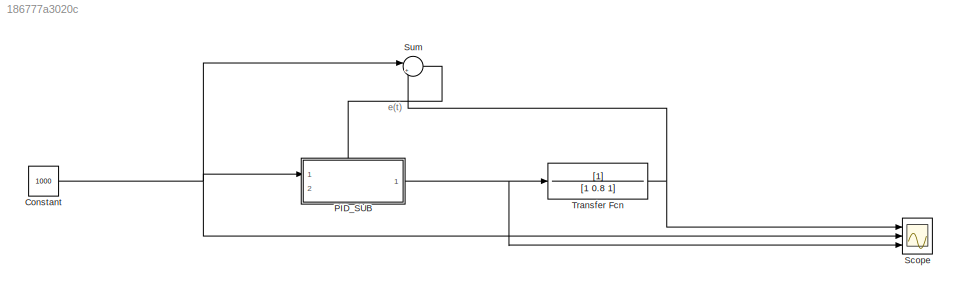
MODEL slx_186777a3020c
KIND model
CONFIG AbsTol = auto
CONFIG EnableMultiTasking = on
CONFIG FixedStep = auto
CONFIG MaxStep = auto
CONFIG MinStep = auto
CONFIG RelTol = 1e-3
CONFIG SampleTimeConstraint = Unconstrained
CONFIG Solver = VariableStepAuto
CONFIG SolverName = VariableStepAuto
CONFIG StartTime = 0.0
CONFIG StopTime = 10.0
WORKSPACE source: mxarray member
WORKSPACE kd = 1.5
WORKSPACE ki = 0.01
WORKSPACE kp = 1
BLOCK [Constant] Constant
  Value = 1000
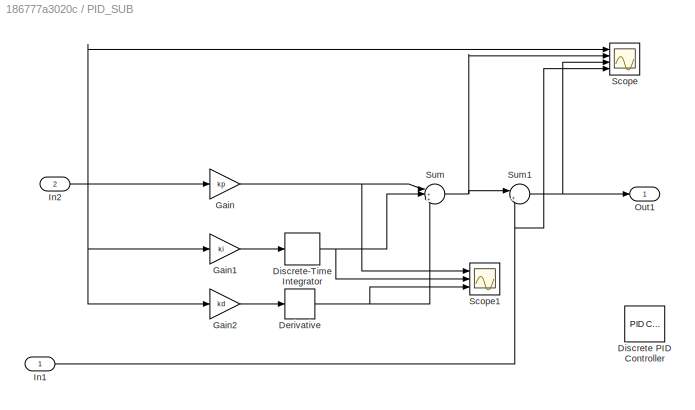
BLOCK [SubSystem] PID_SUB
  PortSchema = {"entries":[{"content":{"sides":[{"content":{"connectorIds":["In1"]},"type":"ConnectorPlacement.EquallySpacedRectSide","uuid":"4c2eb2ca-499d-4d80-b62c-81905e956b01"},{"content":{"connectorIds":["Out1"],"side":"RIGHT"},"type":"ConnectorPlacement.EquallySpacedRectSide","uuid":"4ebe8ffd-0eda-4aa1-a268-40c1c71d47c2"},{"content":{"connectorIds":["In2"],"side":"TOP"},"type":"ConnectorPlacement.EquallySp...<+247ch>
  Ports = [2, 1]
  RequestExecContextInheritance = off
BLOCK [Derivative] PID_SUB/Derivative
BLOCK [Reference] PID_SUB/Discrete PID Controller  REF=simulink/Continuous/PID Controller
  Ports = [1, 1]
  SourceBlock = simulink/Continuous/PID Controller
  SourceProductBaseCode = SL
  SourceType = PID 1dof
BLOCK [DiscreteIntegrator] PID_SUB/Discrete-Time Integrator
  ICPrevOutput = DiscIntNeverNeededParam
  ICPrevScaledInput = DiscIntNeverNeededParam
  InitialConditionSetting = Auto
  Ports = [1, 1]
  SampleTime = -1
BLOCK [Gain] PID_SUB/Gain
  Gain = kp
BLOCK [Gain] PID_SUB/Gain1
  Gain = ki
BLOCK [Gain] PID_SUB/Gain2
  Gain = kd
BLOCK [Inport] PID_SUB/In1
  IconDisplay = Port number and signal name
BLOCK [Inport] PID_SUB/In2
  Port = 2
BLOCK [Outport] PID_SUB/Out1
BLOCK [Scope] PID_SUB/Scope
  Floating = off
  NumInputPorts = 4
  Ports = [4]
  ScopeSpecificationString = Simulink.scopes.TimeScopeBlockCfg('CurrentConfiguration', extmgr.ConfigurationSet(extmgr.Configuration('Core','General UI',true),extmgr.Configuration('Core','Source UI',true),extmgr.Configuration('Sources','WiredSimulink',true,'DataLoggingVariableName','ScopeData1'),extmgr.Configuration('Visuals','Time Domain',true,'SerializedDisplays',{struct('MinYLimReal','-667.6609','MaxYLimReal','2296.40677','...<+1516ch>
BLOCK [Scope] PID_SUB/Scope1
  Floating = off
  NumInputPorts = 3
  Ports = [3]
  ScopeSpecificationString = Simulink.scopes.TimeScopeBlockCfg('CurrentConfiguration', extmgr.ConfigurationSet(extmgr.Configuration('Core','General UI',true),extmgr.Configuration('Core','Source UI',true),extmgr.Configuration('Sources','WiredSimulink',true,'DataLoggingVariableName','ScopeData2'),extmgr.Configuration('Visuals','Time Domain',true,'SerializedDisplays',{struct('MinYLimReal','-1154.375','MaxYLimReal','1239.375','YL...<+1440ch>
BLOCK [Sum] PID_SUB/Sum
  Inputs = |+++
  Ports = [3, 1]
BLOCK [Sum] PID_SUB/Sum1
  Inputs = |++
  Ports = [2, 1]
BLOCK [Scope] Scope
  Floating = off
  NumInputPorts = 3
  Ports = [3]
  ScopeSpecificationString = Simulink.scopes.TimeScopeBlockCfg('CurrentConfiguration', extmgr.ConfigurationSet(extmgr.Configuration('Core','General UI',true,'DisplayFullSourceName',true),extmgr.Configuration('Core','Source UI',true),extmgr.Configuration('Sources','WiredSimulink',true),extmgr.Configuration('Visuals','Time Domain',true,'TimeAxisLabels','All','SerializedDisplays',{struct('MinYLimReal','776.08268','MaxYLimReal','...<+1567ch>
BLOCK [Sum] Sum
  AccumDataTypeStr = int32
  Inputs = |+-
  Ports = [2, 1]
BLOCK [TransferFcn] Transfer Fcn
  Denominator = [1 0.8 1]
ANNOTATION (root): e(t)
NET Constant:1 -> PID_SUB:1, Scope:2, Sum:1
NET PID_SUB/Derivative:1 -> PID_SUB/Scope1:3, PID_SUB/Sum:3
NET PID_SUB/Discrete-Time Integrator:1 -> PID_SUB/Scope1:2, PID_SUB/Sum:2
LINE PID_SUB/Gain1:1 -> PID_SUB/Discrete-Time Integrator:1
LINE PID_SUB/Gain2:1 -> PID_SUB/Derivative:1
NET PID_SUB/Gain:1 -> PID_SUB/Scope1:1, PID_SUB/Sum:1
NET PID_SUB/In1:1 -> PID_SUB/Scope:4, PID_SUB/Sum1:2
NET PID_SUB/In2:1 -> PID_SUB/Gain1:1, PID_SUB/Gain2:1, PID_SUB/Gain:1, PID_SUB/Scope:1
NET PID_SUB/Sum1:1 -> PID_SUB/Out1:1, PID_SUB/Scope:3
NET PID_SUB/Sum:1 -> PID_SUB/Scope:2, PID_SUB/Sum1:1
NET PID_SUB:1 -> Scope:3, Transfer Fcn:1
LINE Sum:1 -> PID_SUB:2
NET Transfer Fcn:1 -> Scope:1, Sum:2
note: NET lines group one-source signal fan-out (src -> all destinations, sorted); 1:1 wires keep LINE
